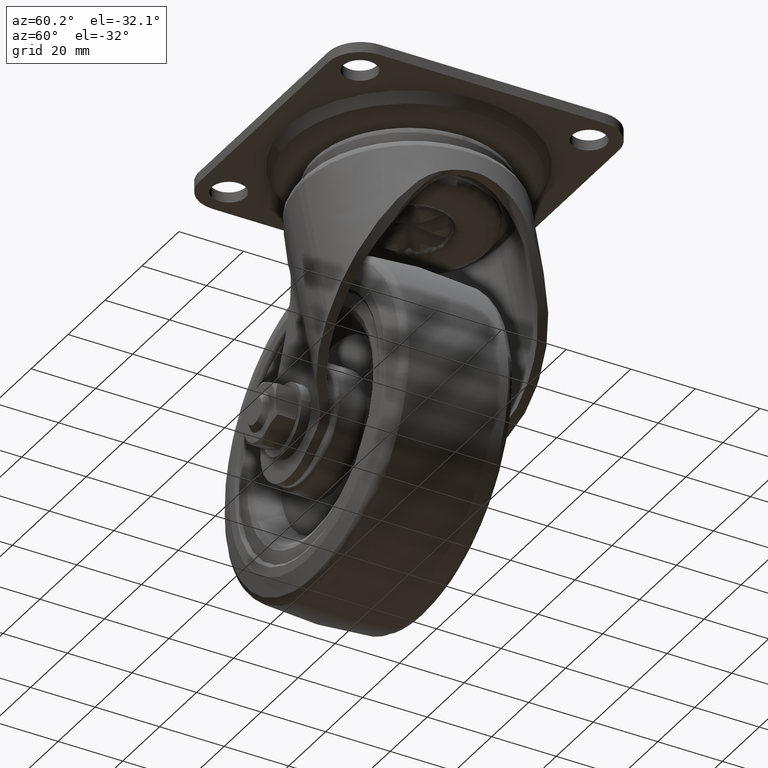
[diagram: clean part render]
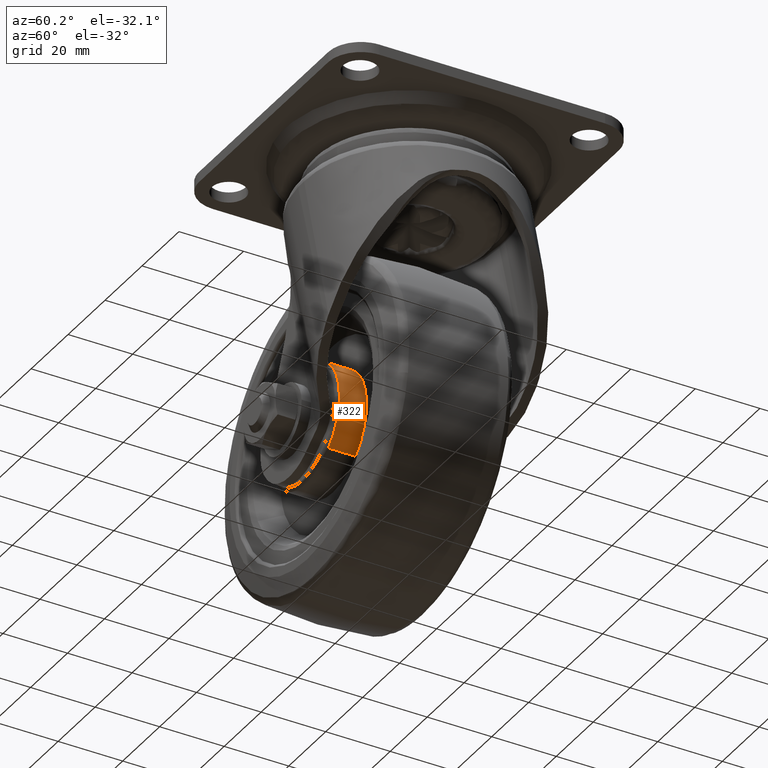
[diagram: same view with one face highlighted and labeled with its STEP entity id]
A machine part, auxiliary view. The second image highlights one B-rep face of the part: STEP entity #322.
In plain terms, the highlighted face is a freeform B-spline surface patch.
Its self-contained STEP definition (entity closure, byte-faithful):
#85=CARTESIAN_POINT('',(-9.670195330146871,-19.400000576183089,-93.455824102270157));
#86=VERTEX_POINT('',#85);
#100=CARTESIAN_POINT('',(-3.751018976602055,-19.400001217043918,-80.229535530819021));
#101=VERTEX_POINT('',#100);
#102=CARTESIAN_POINT('',(-9.670195330146937,-19.400000576182791,-93.455824102270100));
#103=CARTESIAN_POINT('',(-3.850213821701261,-19.400000950510499,-88.122794981068196));
#104=CARTESIAN_POINT('',(-3.751018976602055,-19.400001217043911,-80.229535530819021));
#112=(BOUNDED_CURVE()B_SPLINE_CURVE(2,(#102,#103,#104),.UNSPECIFIED.,.F.,.U.)B_SPLINE_CURVE_WITH_KNOTS((3,3),(0.118415189807392,0.247784295921058),.UNSPECIFIED.)CURVE()GEOMETRIC_REPRESENTATION_ITEM()RATIONAL_B_SPLINE_CURVE((0.853959783217337,0.845975551482717,0.994854295642470))REPRESENTATION_ITEM(''));
#113=EDGE_CURVE('',#86,#101,#112,.T.);
#206=CARTESIAN_POINT('',(-22.0,-19.399999999999999,-61.749778000009499));
#207=VERTEX_POINT('',#206);
#208=CARTESIAN_POINT('',(-3.751018976602054,-19.400001217043918,-80.229535530819021));
#209=CARTESIAN_POINT('',(-3.749578000001477,-19.400001213268155,-80.114872292435322));
#210=CARTESIAN_POINT('',(-3.749578000001467,-19.400001209444650,-80.000200000009485));
#211=CARTESIAN_POINT('',(-3.749578000000729,-19.400000600922702,-61.749778000009492));
#212=CARTESIAN_POINT('',(-22.0,-19.399999999999999,-61.749778000009499));
#220=(BOUNDED_CURVE()B_SPLINE_CURVE(2,(#208,#209,#210,#211,#212),.UNSPECIFIED.,.F.,.U.)B_SPLINE_CURVE_WITH_KNOTS((3,2,3),(0.247784295921058,0.250000000000000,0.500000000000000),.UNSPECIFIED.)CURVE()GEOMETRIC_REPRESENTATION_ITEM()RATIONAL_B_SPLINE_CURVE((0.994854295642470,0.997404141201523,1.0,0.707106781186548,1.0))REPRESENTATION_ITEM(''));
#221=EDGE_CURVE('',#101,#207,#220,.T.);
#223=CARTESIAN_POINT('',(-34.329804669853132,-19.400000576183089,-66.544575897748842));
#224=VERTEX_POINT('',#223);
#225=CARTESIAN_POINT('',(-22.0,-19.399999999999999,-61.749778000009499));
#226=CARTESIAN_POINT('',(-29.097199621694504,-19.400000239633769,-61.749778000009492));
#227=CARTESIAN_POINT('',(-34.329804669853061,-19.400000576182787,-66.544575897748899));
#235=(BOUNDED_CURVE()B_SPLINE_CURVE(2,(#225,#226,#227),.UNSPECIFIED.,.F.,.U.)B_SPLINE_CURVE_WITH_KNOTS((3,3),(0.500000000000000,0.618415189807392),.UNSPECIFIED.)CURVE()GEOMETRIC_REPRESENTATION_ITEM()RATIONAL_B_SPLINE_CURVE((1.0,0.861267975603628,0.853959783217337))REPRESENTATION_ITEM(''));
#236=EDGE_CURVE('',#207,#224,#235,.T.);
#255=CARTESIAN_POINT('',(-9.670193611946589,-10.789999969573900,-93.455822527830392));
#256=CARTESIAN_POINT('',(3.785428915874302,-10.789999969573900,-81.126016139776979));
#257=CARTESIAN_POINT('',(-8.544377472179109,-10.789999969573900,-67.670393611956086));
#258=CARTESIAN_POINT('',(-20.874183860232520,-10.789999969573900,-54.214771084135194));
#259=CARTESIAN_POINT('',(-34.329806388053413,-10.789999969573900,-66.544577472188607));
#260=CARTESIAN_POINT('',(-9.670193611946589,-19.615251248230660,-93.455822527830392));
#261=CARTESIAN_POINT('',(3.785428915874302,-19.615251248230660,-81.126016139776979));
#262=CARTESIAN_POINT('',(-8.544377472179109,-19.615251248230660,-67.670393611956086));
#263=CARTESIAN_POINT('',(-20.874183860232520,-19.615251248230660,-54.214771084135194));
#264=CARTESIAN_POINT('',(-34.329806388053413,-19.615251248230660,-66.544577472188607));
#272=(BOUNDED_SURFACE()B_SPLINE_SURFACE(2,1,((#255,#260),(#256,#261),(#257,#262),(#258,#263),(#259,#264)),.UNSPECIFIED.,.F.,.F.,.U.)B_SPLINE_SURFACE_WITH_KNOTS((3,2,3),(2,2),(0.0,30.238289245729220,60.476578491458433),(0.0,8.825251278656763),.UNSPECIFIED.)GEOMETRIC_REPRESENTATION_ITEM()RATIONAL_B_SPLINE_SURFACE(((1.0,1.0),(0.707106781186548,0.707106781186548),(1.0,1.0),(0.707106781186548,0.707106781186548),(1.0,1.0)))REPRESENTATION_ITEM('')SURFACE());
#273=ORIENTED_EDGE('',*,*,#113,.F.);
#274=CARTESIAN_POINT('',(-9.670195412373733,-11.0,-93.455824177617473));
#275=VERTEX_POINT('',#274);
#276=CARTESIAN_POINT('',(-9.670195412373733,-11.0,-93.455824177617473));
#277=CARTESIAN_POINT('',(-9.670195330146871,-19.400000576183089,-93.455824102270157));
#278=QUASI_UNIFORM_CURVE('',1,(#276,#277),.UNSPECIFIED.,.F.,.U.);
#279=EDGE_CURVE('',#275,#86,#278,.T.);
#280=ORIENTED_EDGE('',*,*,#279,.F.);
#281=CARTESIAN_POINT('',(-22.0,-11.0,-61.749778000009499));
#282=VERTEX_POINT('',#281);
#283=CARTESIAN_POINT('',(-9.670195412373628,-11.0,-93.455824177617600));
#284=CARTESIAN_POINT('',(-3.749578000000003,-10.999999999999998,-88.030579330622942));
#285=CARTESIAN_POINT('',(-3.749578000000000,-11.0,-80.000200000009499));
#286=CARTESIAN_POINT('',(-3.749577999999999,-11.0,-61.749778000009506));
#287=CARTESIAN_POINT('',(-22.0,-11.0,-61.749778000009499));
#295=(BOUNDED_CURVE()B_SPLINE_CURVE(2,(#283,#284,#285,#286,#287),.UNSPECIFIED.,.F.,.U.)B_SPLINE_CURVE_WITH_KNOTS((3,2,3),(0.118415188884873,0.250000000000000,0.500000000000000),.UNSPECIFIED.)CURVE()GEOMETRIC_REPRESENTATION_ITEM()RATIONAL_B_SPLINE_CURVE((0.853959783331207,0.845838804502122,1.0,0.707106781186548,1.0))REPRESENTATION_ITEM(''));
#296=EDGE_CURVE('',#275,#282,#295,.T.);
#297=ORIENTED_EDGE('',*,*,#296,.T.);
#298=CARTESIAN_POINT('',(-34.329804587626271,-11.0,-66.544575822401526));
#299=VERTEX_POINT('',#298);
#300=CARTESIAN_POINT('',(-22.0,-11.0,-61.749778000009499));
#301=CARTESIAN_POINT('',(-29.097199557497561,-10.999999999999998,-61.749778000009499));
#302=CARTESIAN_POINT('',(-34.329804587626377,-11.0,-66.544575822401399));
#310=(BOUNDED_CURVE()B_SPLINE_CURVE(2,(#300,#301,#302),.UNSPECIFIED.,.F.,.U.)B_SPLINE_CURVE_WITH_KNOTS((3,3),(0.500000000000000,0.618415188884873),.UNSPECIFIED.)CURVE()GEOMETRIC_REPRESENTATION_ITEM()RATIONAL_B_SPLINE_CURVE((1.0,0.861267976684426,0.853959783331207))REPRESENTATION_ITEM(''));
#311=EDGE_CURVE('',#282,#299,#310,.T.);
#312=ORIENTED_EDGE('',*,*,#311,.T.);
#313=CARTESIAN_POINT('',(-34.329804587626271,-11.0,-66.544575822401526));
#314=CARTESIAN_POINT('',(-34.329804669853132,-19.400000576183089,-66.544575897748842));
#315=QUASI_UNIFORM_CURVE('',1,(#313,#314),.UNSPECIFIED.,.F.,.U.);
#316=EDGE_CURVE('',#299,#224,#315,.T.);
#317=ORIENTED_EDGE('',*,*,#316,.T.);
#318=ORIENTED_EDGE('',*,*,#236,.F.);
#319=ORIENTED_EDGE('',*,*,#221,.F.);
#320=EDGE_LOOP('',(#273,#280,#297,#312,#317,#318,#319));
#321=FACE_OUTER_BOUND('',#320,.T.);
#322=ADVANCED_FACE('',(#321),#272,.T.);